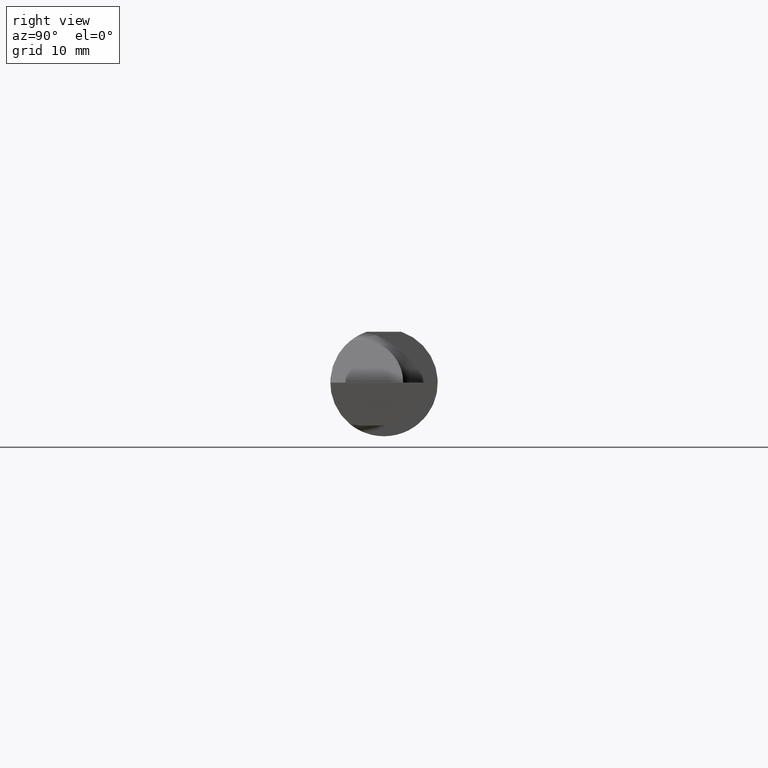
[diagram: clean part render]
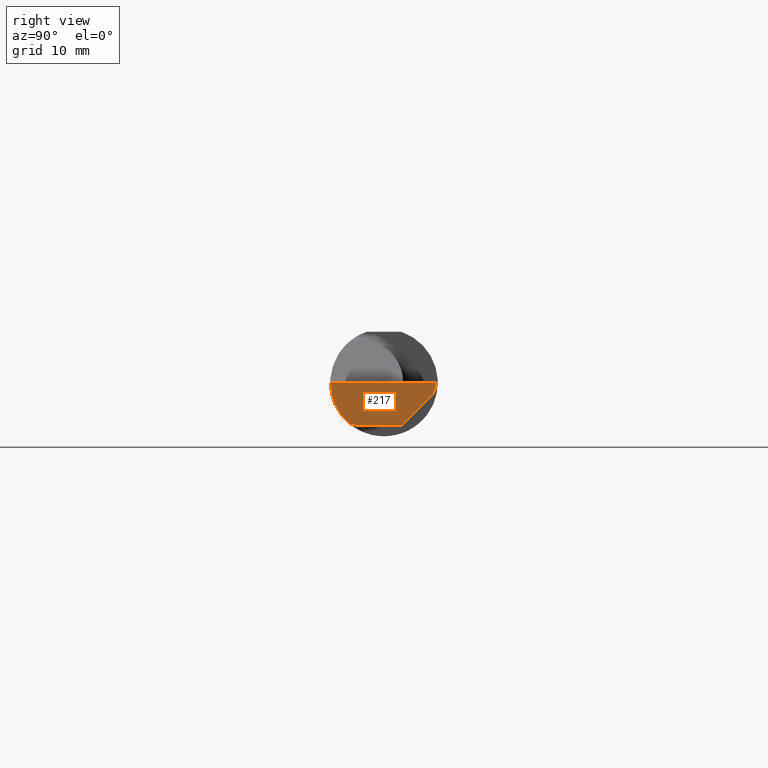
[diagram: same view with one face highlighted and labeled with its STEP entity id]
A machine part, right view. The second image highlights one B-rep face of the part: STEP entity #217.
In plain terms, the highlighted planar face has unit normal (-0.9995, 0.0174, 0.0262).
Its self-contained STEP definition (entity closure, byte-faithful):
#5 = EDGE_CURVE ( 'NONE', #718, #15, #382, .T. ) ;
#15 = VERTEX_POINT ( 'NONE', #533 ) ;
#25 = CARTESIAN_POINT ( 'NONE',  ( 2.493506715846705468, -0.1873499999999999888, 0.000000000000000000 ) ) ;
#73 = CARTESIAN_POINT ( 'NONE',  ( 2.491194102659540111, -0.09477667630339417504, -0.1499999999999999667 ) ) ;
#116 = CARTESIAN_POINT ( 'NONE',  ( 2.491992669264299742, -0.1873499999999999888, -0.05781030015605114619 ) ) ;
#118 = LINE ( 'NONE', #413, #549 ) ;
#119 = EDGE_CURVE ( 'NONE', #278, #779, #459, .T. ) ;
#123 = CARTESIAN_POINT ( 'NONE',  ( 2.490903355898018923, -0.1172600179964007477, -0.1461167706989302817 ) ) ;
#124 = DIRECTION ( 'NONE',  ( -0.9995050723230146650, 0.01744642593347454917, 0.02617694830787320806 ) ) ;
#128 = CARTESIAN_POINT ( 'NONE',  ( 2.500000000000000000, 0.1846500000000000363, 0.000000000000000000 ) ) ;
#132 = DIRECTION ( 'NONE',  ( -0.01745240643727703073, -0.9998476951563912696, 0.000000000000000000 ) ) ;
#170 = VERTEX_POINT ( 'NONE', #25 ) ;
#172 =( BOUNDED_CURVE ( )  B_SPLINE_CURVE ( 3, ( #123, #704, #73, #775 ),
 .UNSPECIFIED., .F., .T. ) 
 B_SPLINE_CURVE_WITH_KNOTS ( ( 4, 4 ),
 ( 0.3598356817164767296, 0.5878737167659224827 ),
 .UNSPECIFIED. ) 
 CURVE ( )  GEOMETRIC_REPRESENTATION_ITEM ( )  RATIONAL_B_SPLINE_CURVE ( ( 1.000000000000000000, 0.9956712472009929815, 0.9956712472009929815, 1.000000000000000000 ) ) 
 REPRESENTATION_ITEM ( '' )  );
#174 = CARTESIAN_POINT ( 'NONE',  ( 2.499908263133603814, 0.1837144758152614021, -0.002879247381999359371 ) ) ;
#181 = VECTOR ( 'NONE', #256, 39.37007874015748143 ) ;
#217 = ADVANCED_FACE ( 'NONE', ( #611 ), #901, .F. ) ;
#220 = ORIENTED_EDGE ( 'NONE', *, *, #119, .F. ) ;
#225 = LINE ( 'NONE', #640, #407 ) ;
#229 = CARTESIAN_POINT ( 'NONE',  ( 2.490903355898018923, -0.1172600179964007477, -0.1461167706989302817 ) ) ;
#256 = DIRECTION ( 'NONE',  ( -0.01745240643727703073, -0.9998476951563912696, 0.000000000000000000 ) ) ;
#278 = VERTEX_POINT ( 'NONE', #128 ) ;
#282 = EDGE_CURVE ( 'NONE', #779, #718, #118, .T. ) ;
#339 = CARTESIAN_POINT ( 'NONE',  ( 2.493506715846705468, -0.1873499999999999888, 0.000000000000000000 ) ) ;
#347 = ORIENTED_EDGE ( 'NONE', *, *, #282, .F. ) ;
#350 = CARTESIAN_POINT ( 'NONE',  ( 2.500000000000000000, 0.1846500000000000363, 0.000000000000000000 ) ) ;
#352 = ORIENTED_EDGE ( 'NONE', *, *, #693, .T. ) ;
#362 = VERTEX_POINT ( 'NONE', #229 ) ;
#382 = LINE ( 'NONE', #663, #181 ) ;
#407 = VECTOR ( 'NONE', #132, 39.37007874015748143 ) ;
#413 = CARTESIAN_POINT ( 'NONE',  ( 2.498695265107655938, 0.1701492753368748778, -0.04015377620627467309 ) ) ;
#436 = VECTOR ( 'NONE', #875, 39.37007874015748854 ) ;
#459 = LINE ( 'NONE', #174, #436 ) ;
#476 = EDGE_CURVE ( 'NONE', #362, #170, #832, .T. ) ;
#508 = ORIENTED_EDGE ( 'NONE', *, *, #5, .F. ) ;
#533 = CARTESIAN_POINT ( 'NONE',  ( 2.491393556036329837, -0.08334999999999985476, -0.1499999999999999944 ) ) ;
#540 = DIRECTION ( 'NONE',  ( 0.02618093305822682959, 0.000000000000000000, 0.9996572206232497981 ) ) ;
#549 = VECTOR ( 'NONE', #905, 39.37007874015748143 ) ;
#563 = AXIS2_PLACEMENT_3D ( 'NONE', #350, #124, #540 ) ;
#608 = EDGE_CURVE ( 'NONE', #362, #15, #172, .T. ) ;
#610 = CARTESIAN_POINT ( 'NONE',  ( 2.491063981715931686, -0.1623470442677541759, -0.1099340280425337851 ) ) ;
#611 = FACE_OUTER_BOUND ( 'NONE', #782, .T. ) ;
#626 = ORIENTED_EDGE ( 'NONE', *, *, #476, .F. ) ;
#627 = CARTESIAN_POINT ( 'NONE',  ( 2.498789266617083449, 0.1723030515431495657, -0.03799999999999999212 ) ) ;
#640 = CARTESIAN_POINT ( 'NONE',  ( 2.500000000000000000, 0.1846500000000000363, 0.000000000000000000 ) ) ;
#663 = CARTESIAN_POINT ( 'NONE',  ( 2.494809345111306254, 0.1123404250442413682, -0.1499999999999999944 ) ) ;
#688 = CARTESIAN_POINT ( 'NONE',  ( 2.490903355898018923, -0.1172600179964007477, -0.1461167706989302817 ) ) ;
#693 = EDGE_CURVE ( 'NONE', #278, #170, #225, .T. ) ;
#704 = CARTESIAN_POINT ( 'NONE',  ( 2.491029992219911282, -0.1061291577212409715, -0.1486999626928445506 ) ) ;
#718 = VERTEX_POINT ( 'NONE', #921 ) ;
#775 = CARTESIAN_POINT ( 'NONE',  ( 2.491393556036329837, -0.08334999999999985476, -0.1499999999999999944 ) ) ;
#779 = VERTEX_POINT ( 'NONE', #627 ) ;
#782 = EDGE_LOOP ( 'NONE', ( #810, #508, #347, #220, #352, #626 ) ) ;
#810 = ORIENTED_EDGE ( 'NONE', *, *, #608, .T. ) ;
#832 =( BOUNDED_CURVE ( )  B_SPLINE_CURVE ( 3, ( #688, #610, #116, #339 ),
 .UNSPECIFIED., .F., .F. ) 
 B_SPLINE_CURVE_WITH_KNOTS ( ( 4, 4 ),
 ( 0.08839520912052888091, 0.9829226100289757406 ),
 .UNSPECIFIED. ) 
 CURVE ( )  GEOMETRIC_REPRESENTATION_ITEM ( )  RATIONAL_B_SPLINE_CURVE ( ( 1.000000000000000000, 0.9344226172588803170, 0.9344226172588803170, 1.000000000000000000 ) ) 
 REPRESENTATION_ITEM ( '' )  );
#875 = DIRECTION ( 'NONE',  ( -0.03028809442608968241, -0.3088752205991470157, -0.9506201814793669991 ) ) ;
#901 = PLANE ( 'NONE',  #563 ) ;
#905 = DIRECTION ( 'NONE',  ( -0.03084697155452398656, -0.7067702824630919256, -0.7067702824630897052 ) ) ;
#921 = CARTESIAN_POINT ( 'NONE',  ( 2.493901029378150724, 0.06030305154314920951, -0.1499999999999999944 ) ) ;